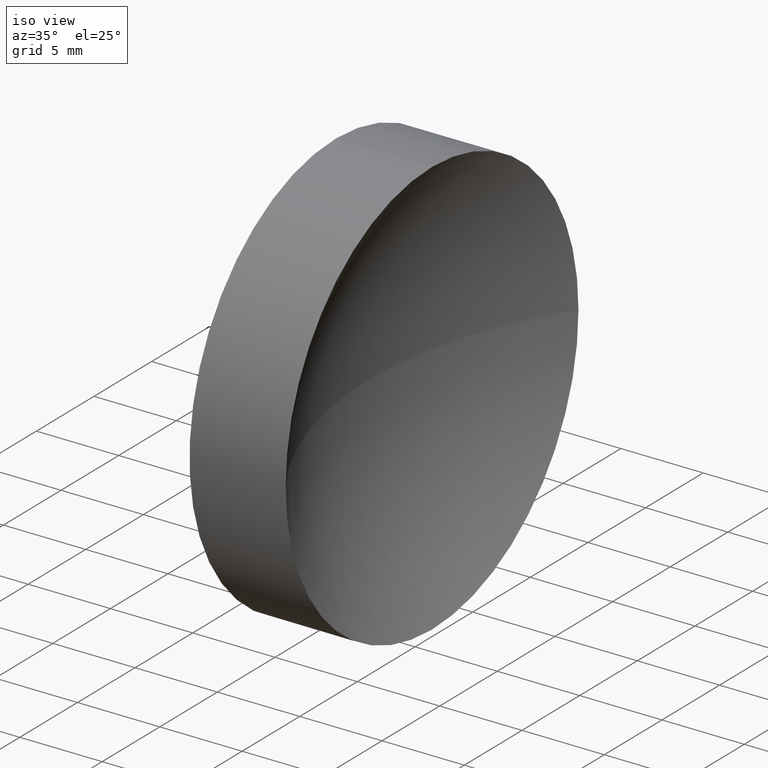
[diagram: clean part render]
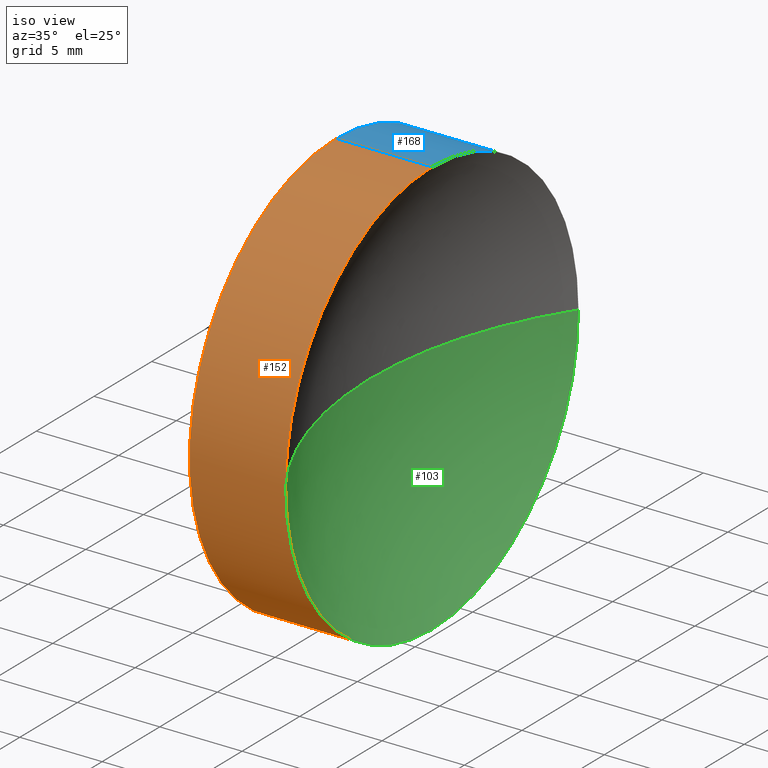
[diagram: same view with three faces highlighted in distinct colors, each labeled with its STEP entity id]
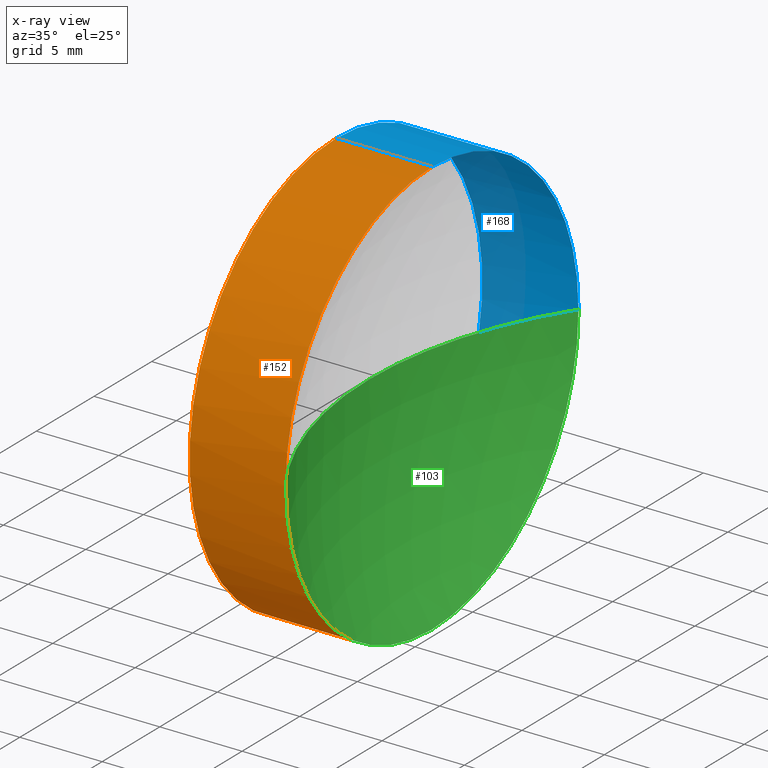
[diagram: x-ray of the same camera — body ghosted, the three highlighted faces saturated]
A machine part, iso view with three faces highlighted in distinct colors.
The next image is the same camera in x-ray (body ghosted, the three faces saturated) — at least one of them is partly hidden behind the body in this view.
Their STEP definitions:

[orange] entity #152 — the highlighted cylindrical surface (partial cylindrical patch) has radius 12.7 mm, axis along (-1, -0, -0).
#5 = FACE_OUTER_BOUND ( 'NONE', #180, .T. ) ;
#6 = ORIENTED_EDGE ( 'NONE', *, *, #99, .T. ) ;
#8 = EDGE_CURVE ( 'NONE', #156, #27, #166, .T. ) ;
#11 = VECTOR ( 'NONE', #33, 1000.000000000000000 ) ;
#18 = DIRECTION ( 'NONE',  ( 0.0000000000000000000, 0.0000000000000000000, 1.000000000000000000 ) ) ;
#22 = AXIS2_PLACEMENT_3D ( 'NONE', #23, #129, #18 ) ;
#23 = CARTESIAN_POINT ( 'NONE',  ( 119.3629307920347200, 71.19398908659370300, 0.0000000000000000000 ) ) ;
#27 = VERTEX_POINT ( 'NONE', #186 ) ;
#30 = CARTESIAN_POINT ( 'NONE',  ( 125.2031928483417000, 71.19398908659370300, 0.0000000000000000000 ) ) ;
#33 = DIRECTION ( 'NONE',  ( -1.000000000000000000, -0.0000000000000000000, -0.0000000000000000000 ) ) ;
#34 = CARTESIAN_POINT ( 'NONE',  ( 125.2031928483417000, 71.19398908659370300, -12.70000000000000300 ) ) ;
#38 = EDGE_CURVE ( 'NONE', #172, #50, #132, .T. ) ;
#44 = ORIENTED_EDGE ( 'NONE', *, *, #8, .T. ) ;
#47 = AXIS2_PLACEMENT_3D ( 'NONE', #30, #171, #121 ) ;
#49 = CYLINDRICAL_SURFACE ( 'NONE', #161, 12.70000000000000300 ) ;
#50 = VERTEX_POINT ( 'NONE', #153 ) ;
#57 = DIRECTION ( 'NONE',  ( -1.000000000000000000, -0.0000000000000000000, -0.0000000000000000000 ) ) ;
#62 = DIRECTION ( 'NONE',  ( -1.000000000000000000, -0.0000000000000000000, -0.0000000000000000000 ) ) ;
#65 = ORIENTED_EDGE ( 'NONE', *, *, #183, .F. ) ;
#70 = DIRECTION ( 'NONE',  ( 0.0000000000000000000, 0.0000000000000000000, 1.000000000000000000 ) ) ;
#71 = CARTESIAN_POINT ( 'NONE',  ( 111.9552297575605700, 71.19398908659370300, -12.70000000000000300 ) ) ;
#73 = CARTESIAN_POINT ( 'NONE',  ( 125.2031928483417000, 71.19398908659370300, 0.0000000000000000000 ) ) ;
#77 = CIRCLE ( 'NONE', #104, 12.70000000000000300 ) ;
#80 = VECTOR ( 'NONE', #62, 1000.000000000000000 ) ;
#83 = DIRECTION ( 'NONE',  ( -1.000000000000000000, -0.0000000000000000000, -0.0000000000000000000 ) ) ;
#88 = CIRCLE ( 'NONE', #22, 12.70000000000000300 ) ;
#94 = DIRECTION ( 'NONE',  ( 0.0000000000000000000, 0.0000000000000000000, 1.000000000000000000 ) ) ;
#99 = EDGE_CURVE ( 'NONE', #27, #164, #162, .T. ) ;
#104 = AXIS2_PLACEMENT_3D ( 'NONE', #73, #57, #70 ) ;
#121 = DIRECTION ( 'NONE',  ( 0.0000000000000000000, 0.0000000000000000000, 1.000000000000000000 ) ) ;
#126 = CARTESIAN_POINT ( 'NONE',  ( 119.3629307920347200, 71.19398908659370300, 12.70000000000000300 ) ) ;
#129 = DIRECTION ( 'NONE',  ( -1.000000000000000000, -0.0000000000000000000, -0.0000000000000000000 ) ) ;
#132 = LINE ( 'NONE', #71, #11 ) ;
#137 = ORIENTED_EDGE ( 'NONE', *, *, #38, .F. ) ;
#140 = EDGE_CURVE ( 'NONE', #172, #156, #77, .T. ) ;
#152 = ADVANCED_FACE ( 'NONE', ( #5 ), #49, .T. ) ;
#153 = CARTESIAN_POINT ( 'NONE',  ( 119.3629307920347200, 71.19398908659370300, -12.70000000000000300 ) ) ;
#156 = VERTEX_POINT ( 'NONE', #176 ) ;
#161 = AXIS2_PLACEMENT_3D ( 'NONE', #184, #83, #94 ) ;
#162 = LINE ( 'NONE', #169, #80 ) ;
#164 = VERTEX_POINT ( 'NONE', #126 ) ;
#166 = CIRCLE ( 'NONE', #47, 12.70000000000000300 ) ;
#169 = CARTESIAN_POINT ( 'NONE',  ( 111.9552297575605700, 71.19398908659370300, 12.70000000000000300 ) ) ;
#171 = DIRECTION ( 'NONE',  ( -1.000000000000000000, -0.0000000000000000000, -0.0000000000000000000 ) ) ;
#172 = VERTEX_POINT ( 'NONE', #34 ) ;
#175 = ORIENTED_EDGE ( 'NONE', *, *, #140, .T. ) ;
#176 = CARTESIAN_POINT ( 'NONE',  ( 125.2031928483417000, 58.49398908659371400, 0.0000000000000000000 ) ) ;
#180 = EDGE_LOOP ( 'NONE', ( #137, #175, #44, #6, #65 ) ) ;
#183 = EDGE_CURVE ( 'NONE', #50, #164, #88, .T. ) ;
#184 = CARTESIAN_POINT ( 'NONE',  ( 111.9552297575605700, 71.19398908659370300, 0.0000000000000000000 ) ) ;
#186 = CARTESIAN_POINT ( 'NONE',  ( 125.2031928483417000, 71.19398908659370300, 12.70000000000000300 ) ) ;

[blue] entity #168 — the highlighted cylindrical surface (partial cylindrical patch) has radius 12.7 mm, axis along (-1, -0, -0).
#4 = DIRECTION ( 'NONE',  ( 0.0000000000000000000, 0.0000000000000000000, 1.000000000000000000 ) ) ;
#9 = CIRCLE ( 'NONE', #170, 12.70000000000000300 ) ;
#11 = VECTOR ( 'NONE', #33, 1000.000000000000000 ) ;
#13 = DIRECTION ( 'NONE',  ( -1.000000000000000000, -0.0000000000000000000, -0.0000000000000000000 ) ) ;
#14 = AXIS2_PLACEMENT_3D ( 'NONE', #32, #13, #154 ) ;
#17 = CARTESIAN_POINT ( 'NONE',  ( 111.9552297575605700, 71.19398908659370300, 0.0000000000000000000 ) ) ;
#24 = CARTESIAN_POINT ( 'NONE',  ( 125.2031928483417000, 71.19398908659370300, 0.0000000000000000000 ) ) ;
#27 = VERTEX_POINT ( 'NONE', #186 ) ;
#29 = CARTESIAN_POINT ( 'NONE',  ( 125.2031928483417000, 83.89398908659370600, 1.555301434917137400E-015 ) ) ;
#32 = CARTESIAN_POINT ( 'NONE',  ( 125.2031928483417000, 71.19398908659370300, 0.0000000000000000000 ) ) ;
#33 = DIRECTION ( 'NONE',  ( -1.000000000000000000, -0.0000000000000000000, -0.0000000000000000000 ) ) ;
#34 = CARTESIAN_POINT ( 'NONE',  ( 125.2031928483417000, 71.19398908659370300, -12.70000000000000300 ) ) ;
#38 = EDGE_CURVE ( 'NONE', #172, #50, #132, .T. ) ;
#45 = DIRECTION ( 'NONE',  ( 0.0000000000000000000, 0.0000000000000000000, 1.000000000000000000 ) ) ;
#48 = DIRECTION ( 'NONE',  ( -1.000000000000000000, -0.0000000000000000000, -0.0000000000000000000 ) ) ;
#50 = VERTEX_POINT ( 'NONE', #153 ) ;
#52 = EDGE_LOOP ( 'NONE', ( #134, #53, #84, #67, #122 ) ) ;
#53 = ORIENTED_EDGE ( 'NONE', *, *, #38, .T. ) ;
#62 = DIRECTION ( 'NONE',  ( -1.000000000000000000, -0.0000000000000000000, -0.0000000000000000000 ) ) ;
#67 = ORIENTED_EDGE ( 'NONE', *, *, #99, .F. ) ;
#71 = CARTESIAN_POINT ( 'NONE',  ( 111.9552297575605700, 71.19398908659370300, -12.70000000000000300 ) ) ;
#76 = EDGE_CURVE ( 'NONE', #127, #172, #118, .T. ) ;
#80 = VECTOR ( 'NONE', #62, 1000.000000000000000 ) ;
#82 = CIRCLE ( 'NONE', #149, 12.70000000000000300 ) ;
#84 = ORIENTED_EDGE ( 'NONE', *, *, #181, .F. ) ;
#99 = EDGE_CURVE ( 'NONE', #27, #164, #162, .T. ) ;
#107 = DIRECTION ( 'NONE',  ( 0.0000000000000000000, 0.0000000000000000000, 1.000000000000000000 ) ) ;
#109 = DIRECTION ( 'NONE',  ( -1.000000000000000000, -0.0000000000000000000, -0.0000000000000000000 ) ) ;
#117 = FACE_OUTER_BOUND ( 'NONE', #52, .T. ) ;
#118 = CIRCLE ( 'NONE', #14, 12.70000000000000300 ) ;
#119 = AXIS2_PLACEMENT_3D ( 'NONE', #17, #109, #4 ) ;
#122 = ORIENTED_EDGE ( 'NONE', *, *, #178, .T. ) ;
#126 = CARTESIAN_POINT ( 'NONE',  ( 119.3629307920347200, 71.19398908659370300, 12.70000000000000300 ) ) ;
#127 = VERTEX_POINT ( 'NONE', #29 ) ;
#128 = CARTESIAN_POINT ( 'NONE',  ( 119.3629307920347200, 71.19398908659370300, 0.0000000000000000000 ) ) ;
#132 = LINE ( 'NONE', #71, #11 ) ;
#134 = ORIENTED_EDGE ( 'NONE', *, *, #76, .T. ) ;
#149 = AXIS2_PLACEMENT_3D ( 'NONE', #24, #48, #107 ) ;
#153 = CARTESIAN_POINT ( 'NONE',  ( 119.3629307920347200, 71.19398908659370300, -12.70000000000000300 ) ) ;
#154 = DIRECTION ( 'NONE',  ( 0.0000000000000000000, 0.0000000000000000000, 1.000000000000000000 ) ) ;
#155 = CYLINDRICAL_SURFACE ( 'NONE', #119, 12.70000000000000300 ) ;
#162 = LINE ( 'NONE', #169, #80 ) ;
#164 = VERTEX_POINT ( 'NONE', #126 ) ;
#168 = ADVANCED_FACE ( 'NONE', ( #117 ), #155, .T. ) ;
#169 = CARTESIAN_POINT ( 'NONE',  ( 111.9552297575605700, 71.19398908659370300, 12.70000000000000300 ) ) ;
#170 = AXIS2_PLACEMENT_3D ( 'NONE', #128, #174, #45 ) ;
#172 = VERTEX_POINT ( 'NONE', #34 ) ;
#174 = DIRECTION ( 'NONE',  ( -1.000000000000000000, -0.0000000000000000000, -0.0000000000000000000 ) ) ;
#178 = EDGE_CURVE ( 'NONE', #27, #127, #82, .T. ) ;
#181 = EDGE_CURVE ( 'NONE', #164, #50, #9, .T. ) ;
#186 = CARTESIAN_POINT ( 'NONE',  ( 125.2031928483417000, 71.19398908659370300, 12.70000000000000300 ) ) ;

[green] entity #103 — the highlighted spherical surface has radius 22.92 mm.
#3 = EDGE_CURVE ( 'NONE', #127, #163, #16, .T. ) ;
#12 = EDGE_LOOP ( 'NONE', ( #160, #115, #31, #60 ) ) ;
#13 = DIRECTION ( 'NONE',  ( -1.000000000000000000, -0.0000000000000000000, -0.0000000000000000000 ) ) ;
#14 = AXIS2_PLACEMENT_3D ( 'NONE', #32, #13, #154 ) ;
#16 = CIRCLE ( 'NONE', #150, 22.92000000000000900 ) ;
#29 = CARTESIAN_POINT ( 'NONE',  ( 125.2031928483417000, 83.89398908659370600, 1.555301434917137400E-015 ) ) ;
#31 = ORIENTED_EDGE ( 'NONE', *, *, #146, .F. ) ;
#32 = CARTESIAN_POINT ( 'NONE',  ( 125.2031928483417000, 71.19398908659370300, 0.0000000000000000000 ) ) ;
#34 = CARTESIAN_POINT ( 'NONE',  ( 125.2031928483417000, 71.19398908659370300, -12.70000000000000300 ) ) ;
#39 = SPHERICAL_SURFACE ( 'NONE', #81, 22.92000000000000500 ) ;
#42 = CIRCLE ( 'NONE', #116, 22.92000000000000900 ) ;
#57 = DIRECTION ( 'NONE',  ( -1.000000000000000000, -0.0000000000000000000, -0.0000000000000000000 ) ) ;
#60 = ORIENTED_EDGE ( 'NONE', *, *, #140, .F. ) ;
#63 = DIRECTION ( 'NONE',  ( 0.0000000000000000000, -1.000000000000000000, 0.0000000000000000000 ) ) ;
#70 = DIRECTION ( 'NONE',  ( 0.0000000000000000000, 0.0000000000000000000, 1.000000000000000000 ) ) ;
#73 = CARTESIAN_POINT ( 'NONE',  ( 125.2031928483417000, 71.19398908659370300, 0.0000000000000000000 ) ) ;
#74 = DIRECTION ( 'NONE',  ( -1.000000000000000000, 0.0000000000000000000, 0.0000000000000000000 ) ) ;
#76 = EDGE_CURVE ( 'NONE', #127, #172, #118, .T. ) ;
#77 = CIRCLE ( 'NONE', #104, 12.70000000000000300 ) ;
#81 = AXIS2_PLACEMENT_3D ( 'NONE', #151, #124, #63 ) ;
#95 = CARTESIAN_POINT ( 'NONE',  ( 144.2829307920347300, 71.19398908659371700, 0.0000000000000000000 ) ) ;
#98 = CARTESIAN_POINT ( 'NONE',  ( 144.2829307920347300, 71.19398908659371700, 0.0000000000000000000 ) ) ;
#103 = ADVANCED_FACE ( 'NONE', ( #112 ), #39, .F. ) ;
#104 = AXIS2_PLACEMENT_3D ( 'NONE', #73, #57, #70 ) ;
#111 = CARTESIAN_POINT ( 'NONE',  ( 121.3629307920347300, 71.19398908659371700, 0.0000000000000000000 ) ) ;
#112 = FACE_OUTER_BOUND ( 'NONE', #12, .T. ) ;
#115 = ORIENTED_EDGE ( 'NONE', *, *, #3, .T. ) ;
#116 = AXIS2_PLACEMENT_3D ( 'NONE', #98, #125, #74 ) ;
#118 = CIRCLE ( 'NONE', #14, 12.70000000000000300 ) ;
#124 = DIRECTION ( 'NONE',  ( 0.0000000000000000000, 0.0000000000000000000, 1.000000000000000000 ) ) ;
#125 = DIRECTION ( 'NONE',  ( 0.0000000000000000000, 0.0000000000000000000, -1.000000000000000000 ) ) ;
#127 = VERTEX_POINT ( 'NONE', #29 ) ;
#140 = EDGE_CURVE ( 'NONE', #172, #156, #77, .T. ) ;
#143 = DIRECTION ( 'NONE',  ( 0.0000000000000000000, -1.000000000000000000, -1.224646799147353000E-016 ) ) ;
#146 = EDGE_CURVE ( 'NONE', #156, #163, #42, .T. ) ;
#150 = AXIS2_PLACEMENT_3D ( 'NONE', #95, #173, #143 ) ;
#151 = CARTESIAN_POINT ( 'NONE',  ( 144.2829307920347300, 71.19398908659371700, 0.0000000000000000000 ) ) ;
#154 = DIRECTION ( 'NONE',  ( 0.0000000000000000000, 0.0000000000000000000, 1.000000000000000000 ) ) ;
#156 = VERTEX_POINT ( 'NONE', #176 ) ;
#160 = ORIENTED_EDGE ( 'NONE', *, *, #76, .F. ) ;
#163 = VERTEX_POINT ( 'NONE', #111 ) ;
#172 = VERTEX_POINT ( 'NONE', #34 ) ;
#173 = DIRECTION ( 'NONE',  ( 0.0000000000000000000, -1.224646799147353200E-016, 1.000000000000000000 ) ) ;
#176 = CARTESIAN_POINT ( 'NONE',  ( 125.2031928483417000, 58.49398908659371400, 0.0000000000000000000 ) ) ;